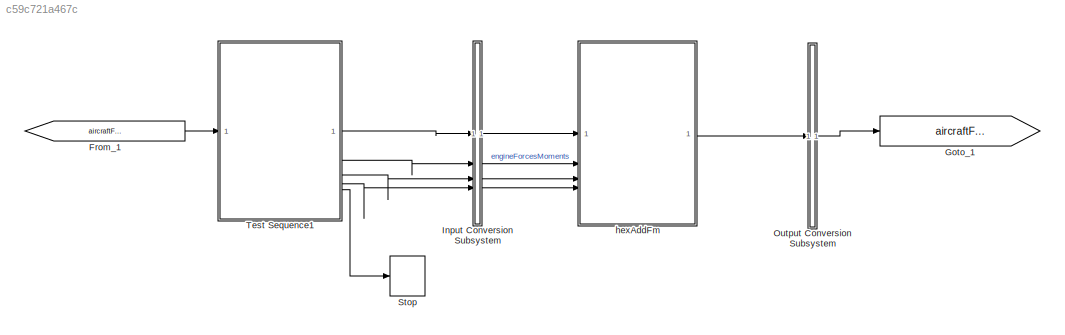
MODEL slx_c59c721a467c
KIND model
CONFIG AbsTol = auto
CONFIG EnableMultiTasking = off
CONFIG FixedStep = auto
CONFIG MaxStep = auto
CONFIG MinStep = auto
CONFIG RelTol = 1e-3
CONFIG SampleTimeConstraint = Unconstrained
CONFIG SolverName = VariableStepAuto
CONFIG StartTime = 0.0
CONFIG StopTime = inf
BLOCK [From] From_1
  GotoTag = aircraftForcesMomentsBus
BLOCK [Goto] Goto_1
  GotoTag = aircraftForcesMomentsBus
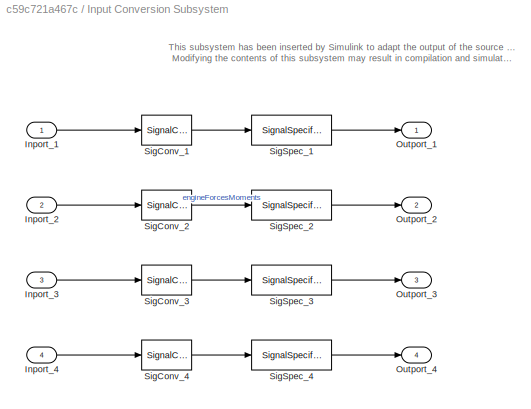
BLOCK [SubSystem] Input Conversion Subsystem
  AttributesFormatString = %<Description>
  Description = Signal spec.\nand routing
  Permissions = ReadOnly
  PermitHierarchicalResolution = ExplicitOnly
  Tag = __SLT_ICS__
  TreatAsGroupedWhenPropagatingVariantConditions = off
  UserDataPersistent = on
BLOCK [Inport] Input Conversion Subsystem/Inport_1
BLOCK [Inport] Input Conversion Subsystem/Inport_2
  Port = 2
BLOCK [Inport] Input Conversion Subsystem/Inport_3
  Port = 3
BLOCK [Inport] Input Conversion Subsystem/Inport_4
  Port = 4
BLOCK [Outport] Input Conversion Subsystem/Outport_1
BLOCK [Outport] Input Conversion Subsystem/Outport_2
  Port = 2
BLOCK [Outport] Input Conversion Subsystem/Outport_3
  Port = 3
BLOCK [Outport] Input Conversion Subsystem/Outport_4
  Port = 4
BLOCK [SignalConversion] Input Conversion Subsystem/SigConv_1
  ConversionOutput = Virtual bus
  OverrideOpt = off
BLOCK [SignalConversion] Input Conversion Subsystem/SigConv_2
  ConversionOutput = Virtual bus
  OverrideOpt = off
BLOCK [SignalConversion] Input Conversion Subsystem/SigConv_3
  ConversionOutput = Virtual bus
  OverrideOpt = off
BLOCK [SignalConversion] Input Conversion Subsystem/SigConv_4
  ConversionOutput = Virtual bus
  OverrideOpt = off
BLOCK [SignalSpecification] Input Conversion Subsystem/SigSpec_1
  OutDataTypeStr = Bus: ComponentForcesMomentsBus
BLOCK [SignalSpecification] Input Conversion Subsystem/SigSpec_2
  OutDataTypeStr = Bus: ComponentForcesMomentsBus
BLOCK [SignalSpecification] Input Conversion Subsystem/SigSpec_3
  OutDataTypeStr = Bus: ComponentForcesMomentsBus
BLOCK [SignalSpecification] Input Conversion Subsystem/SigSpec_4
  OutDataTypeStr = Bus: ComponentForcesMomentsBus
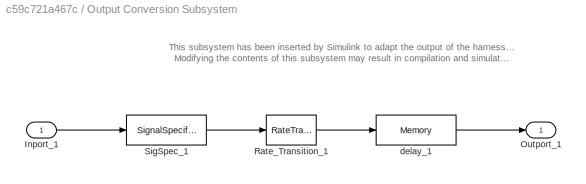
BLOCK [SubSystem] Output Conversion Subsystem
  AttributesFormatString = %<Description>
  Description = Signal spec.\nand routing
  Permissions = ReadOnly
  PermitHierarchicalResolution = ExplicitOnly
  Tag = __SLT_OCS__
  TreatAsGroupedWhenPropagatingVariantConditions = off
  UserDataPersistent = on
BLOCK [Inport] Output Conversion Subsystem/Inport_1
BLOCK [Outport] Output Conversion Subsystem/Outport_1
BLOCK [RateTransition] Output Conversion Subsystem/Rate_Transition_1
  OutPortSampleTimeOpt = Inherit
BLOCK [SignalSpecification] Output Conversion Subsystem/SigSpec_1
  Dimensions = [1]
  OutDataTypeStr = Bus: AircraftForcesMomentsBus
  SignalType = real
  VarSizeSig = No
BLOCK [Memory] Output Conversion Subsystem/delay_1
  InitialCondition = IC1
BLOCK [Stop] Stop
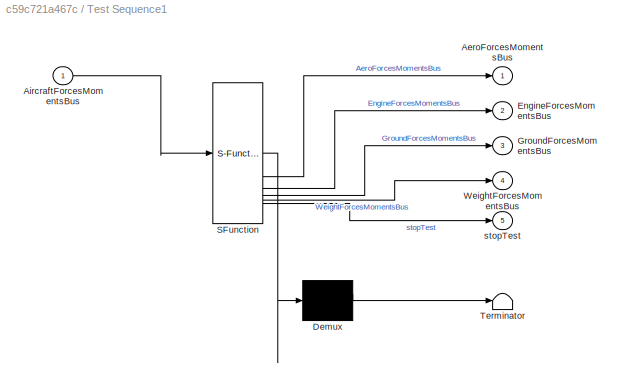
BLOCK [SubSystem] Test Sequence1
  ErrorFcn = Stateflow.Translate.translate
  PermitHierarchicalResolution = ExplicitOnly
  SFBlockType = Test Sequence
  ShowPortLabels = none
  TreatAsAtomicUnit = on
BLOCK [Demux] Test Sequence1/ Demux 
  Outputs = 1
BLOCK [S-Function] Test Sequence1/ SFunction 
  EnableBusSupport = on
  FunctionName = sf_sfun
  Parameters = 1
  PortCounts = [1 6]
  SFcnIsStateOwnerBlock = off
  SFunctionDeploymentMode = off
  Tag = Stateflow S-Function 1
BLOCK [Terminator] Test Sequence1/ Terminator 
BLOCK [Outport] Test Sequence1/AeroForcesMomentsBus
BLOCK [Inport] Test Sequence1/AircraftForcesMomentsBus
BLOCK [Outport] Test Sequence1/EngineForcesMomentsBus
  Port = 2
BLOCK [Outport] Test Sequence1/GroundForcesMomentsBus
  Port = 3
BLOCK [Outport] Test Sequence1/WeightForcesMomentsBus
  Port = 4
BLOCK [Outport] Test Sequence1/stopTest
  Port = 5
BLOCK [ModelReference] hexAddFm
  ModelNameDialog = hexAddFm
  ModelReferenceVersion = 1.14
ANNOTATION Input Conversion Subsystem: This subsystem has been inserted by Simulink to adapt the output of the source blocks to the interface required by the harnessed component. Modifying the contents of this subsystem may result in compilation and simulation failure.
ANNOTATION Output Conversion Subsystem: This subsystem has been inserted by Simulink to adapt the output of the harnessed component to the interface required by the sink blocks. Modifying the contents of this subsystem may result in compilation and simulation failure.
LINE From_1:1 -> Test Sequence1:1
LINE Input Conversion Subsystem/Inport_1:1 -> Input Conversion Subsystem/SigConv_1:1
LINE Input Conversion Subsystem/Inport_2:1 -> Input Conversion Subsystem/SigConv_2:1
LINE Input Conversion Subsystem/Inport_3:1 -> Input Conversion Subsystem/SigConv_3:1
LINE Input Conversion Subsystem/Inport_4:1 -> Input Conversion Subsystem/SigConv_4:1
LINE Input Conversion Subsystem/SigConv_1:1 -> Input Conversion Subsystem/SigSpec_1:1
LINE Input Conversion Subsystem/SigConv_2:1 -> Input Conversion Subsystem/SigSpec_2:1
LINE Input Conversion Subsystem/SigConv_3:1 -> Input Conversion Subsystem/SigSpec_3:1
LINE Input Conversion Subsystem/SigConv_4:1 -> Input Conversion Subsystem/SigSpec_4:1
LINE Input Conversion Subsystem/SigSpec_1:1 -> Input Conversion Subsystem/Outport_1:1
LINE Input Conversion Subsystem/SigSpec_2:1 -> Input Conversion Subsystem/Outport_2:1
LINE Input Conversion Subsystem/SigSpec_3:1 -> Input Conversion Subsystem/Outport_3:1
LINE Input Conversion Subsystem/SigSpec_4:1 -> Input Conversion Subsystem/Outport_4:1
LINE Input Conversion Subsystem:1 -> hexAddFm:1
LINE Input Conversion Subsystem:2 -> hexAddFm:2
LINE Input Conversion Subsystem:3 -> hexAddFm:3
LINE Input Conversion Subsystem:4 -> hexAddFm:4
LINE Output Conversion Subsystem/Inport_1:1 -> Output Conversion Subsystem/SigSpec_1:1
LINE Output Conversion Subsystem/Rate_Transition_1:1 -> Output Conversion Subsystem/delay_1:1
LINE Output Conversion Subsystem/SigSpec_1:1 -> Output Conversion Subsystem/Rate_Transition_1:1
LINE Output Conversion Subsystem/delay_1:1 -> Output Conversion Subsystem/Outport_1:1
LINE Output Conversion Subsystem:1 -> Goto_1:1
LINE Test Sequence1:1 -> Input Conversion Subsystem:1
LINE Test Sequence1:2 -> Input Conversion Subsystem:2
LINE Test Sequence1:3 -> Input Conversion Subsystem:3
LINE Test Sequence1:4 -> Input Conversion Subsystem:4
LINE Test Sequence1:5 -> Stop:1
LINE hexAddFm:1 -> Output Conversion Subsystem:1
CHART Test Sequence1 states=7 transitions=7
  STATE_LABEL 'Scenario_1'
  STATE_LABEL 'Initialize\n\n%% Initialize data outputs.\nstopTest = false;\nAeroForcesMomentsBus.forcesInBody_N = zeros(3,1);\nAeroForcesMomentsBus.momentsInBody_Nm = zeros(3,1);\nEngineForcesMomentsBus.forcesInBody_N = zeros(3,1);\nEngineForcesMomentsBus.momentsInBody_Nm = zeros(3,1);\nGroundForcesMomentsBus.forcesInBody_N = zeros(3,1);\nGroundForcesMomentsBus.momentsInBody_Nm = zeros(3,1);\nWeightForcesMomentsBus.force...<+105ch>'
  STATE_LABEL 'Define_Test1_Inputs\n\n% set to random values\nAeroForcesMomentsBus.forcesInBody_N = randomInputs(1:3);\nAeroForcesMomentsBus.momentsInBody_Nm = randomInputs(4:6);\nEngineForcesMomentsBus.forcesInBody_N = randomInputs(7:9);\nEngineForcesMomentsBus.momentsInBody_Nm = randomInputs(10:12);\nGroundForcesMomentsBus.forcesInBody_N = randomInputs(13:15);\nGroundForcesMomentsBus.momentsInBody_Nm = randomInputs(16...<+129ch>'
  STATE_LABEL 'Test1\n\n% Test 1: Check AircraftForcesMomentsBus is the sum of AeroForcesMomentsBus, EngineForcesMomentsBus, and GroundForcesMomentsBus\nverify(all(isClose(AircraftForcesMomentsBus.forcesInBody_N, AeroForcesMomentsBus.forcesInBody_N + EngineForcesMomentsBus.forcesInBody_N + GroundForcesMomentsBus.forcesInBody_N + WeightForcesMomentsBus.forcesInBody_N)))\nverify(all(isClose(AircraftForcesMomentsBus.mo...<+182ch>'
  STATE_LABEL 'Define_Test2_Inputs\n\n% set to random values\nAeroForcesMomentsBus.forcesInBody_N = randomInputs(25:27);\nAeroForcesMomentsBus.momentsInBody_Nm = randomInputs(28:30);\nEngineForcesMomentsBus.forcesInBody_N = randomInputs(31:33);\nEngineForcesMomentsBus.momentsInBody_Nm = randomInputs(34:36);\nGroundForcesMomentsBus.forcesInBody_N = randomInputs(37:39);\nGroundForcesMomentsBus.momentsInBody_Nm = randomInp...<+135ch>'
  STATE_LABEL 'Test2\n\n% Test 2: Same as test 1 but with another set of random inputs\nverify(all(isClose(AircraftForcesMomentsBus.forcesInBody_N, AeroForcesMomentsBus.forcesInBody_N + EngineForcesMomentsBus.forcesInBody_N + GroundForcesMomentsBus.forcesInBody_N + WeightForcesMomentsBus.forcesInBody_N)))\nverify(all(isClose(AircraftForcesMomentsBus.momentsInBody_Nm, AeroForcesMomentsBus.momentsInBody_Nm + EngineFor...<+117ch>'
  STATE_LABEL 'EndTest\nstopTest = true;'
  STATE_LABEL '[\ntrue\n]'
  STATE_LABEL '[\nafter(1,sec)\n]'
  STATE_LABEL '[\ntrue\n]'
  STATE_LABEL '[\nafter(1,sec)\n]'
  STATE_LABEL '[\ntrue\n]'
  STATE_LABEL 'Initialize\n\n%% Initialize data outputs.\nstopTest = false;\nAeroForcesMomentsBus.forcesInBody_N = zeros(3,1);\nAeroForcesMomentsBus.momentsInBody_Nm = zeros(3,1);\nEngineForcesMomentsBus.forcesInBody_N = zeros(3,1);\nEngineForcesMomentsBus.momentsInBody_Nm = zeros(3,1);\nGroundForcesMomentsBus.forcesInBody_N = zeros(3,1);\nGroundForcesMomentsBus.momentsInBody_Nm = zeros(3,1);\nWeightForcesMomentsBus.force...<+105ch>'
  STATE_LABEL 'Define_Test1_Inputs\n\n% set to random values\nAeroForcesMomentsBus.forcesInBody_N = randomInputs(1:3);\nAeroForcesMomentsBus.momentsInBody_Nm = randomInputs(4:6);\nEngineForcesMomentsBus.forcesInBody_N = randomInputs(7:9);\nEngineForcesMomentsBus.momentsInBody_Nm = randomInputs(10:12);\nGroundForcesMomentsBus.forcesInBody_N = randomInputs(13:15);\nGroundForcesMomentsBus.momentsInBody_Nm = randomInputs(16...<+129ch>'
  STATE_LABEL 'Test1\n\n% Test 1: Check AircraftForcesMomentsBus is the sum of AeroForcesMomentsBus, EngineForcesMomentsBus, and GroundForcesMomentsBus\nverify(all(isClose(AircraftForcesMomentsBus.forcesInBody_N, AeroForcesMomentsBus.forcesInBody_N + EngineForcesMomentsBus.forcesInBody_N + GroundForcesMomentsBus.forcesInBody_N + WeightForcesMomentsBus.forcesInBody_N)))\nverify(all(isClose(AircraftForcesMomentsBus.mo...<+182ch>'
  STATE_LABEL 'Define_Test2_Inputs\n\n% set to random values\nAeroForcesMomentsBus.forcesInBody_N = randomInputs(25:27);\nAeroForcesMomentsBus.momentsInBody_Nm = randomInputs(28:30);\nEngineForcesMomentsBus.forcesInBody_N = randomInputs(31:33);\nEngineForcesMomentsBus.momentsInBody_Nm = randomInputs(34:36);\nGroundForcesMomentsBus.forcesInBody_N = randomInputs(37:39);\nGroundForcesMomentsBus.momentsInBody_Nm = randomInp...<+135ch>'
  STATE_LABEL 'Test2\n\n% Test 2: Same as test 1 but with another set of random inputs\nverify(all(isClose(AircraftForcesMomentsBus.forcesInBody_N, AeroForcesMomentsBus.forcesInBody_N + EngineForcesMomentsBus.forcesInBody_N + GroundForcesMomentsBus.forcesInBody_N + WeightForcesMomentsBus.forcesInBody_N)))\nverify(all(isClose(AircraftForcesMomentsBus.momentsInBody_Nm, AeroForcesMomentsBus.momentsInBody_Nm + EngineFor...<+117ch>'
  STATE_LABEL 'EndTest\nstopTest = true;'
